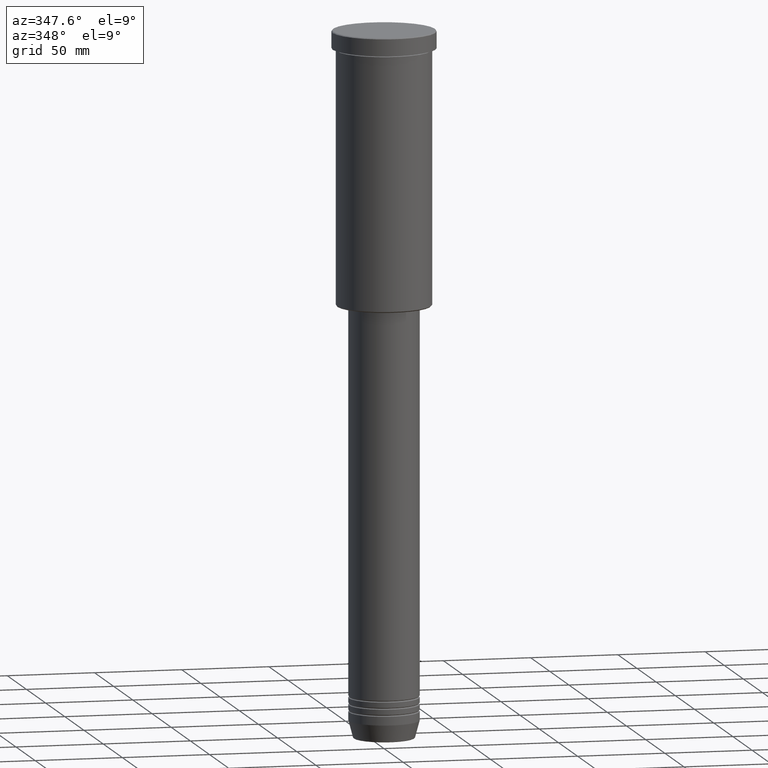
[diagram: clean part render]
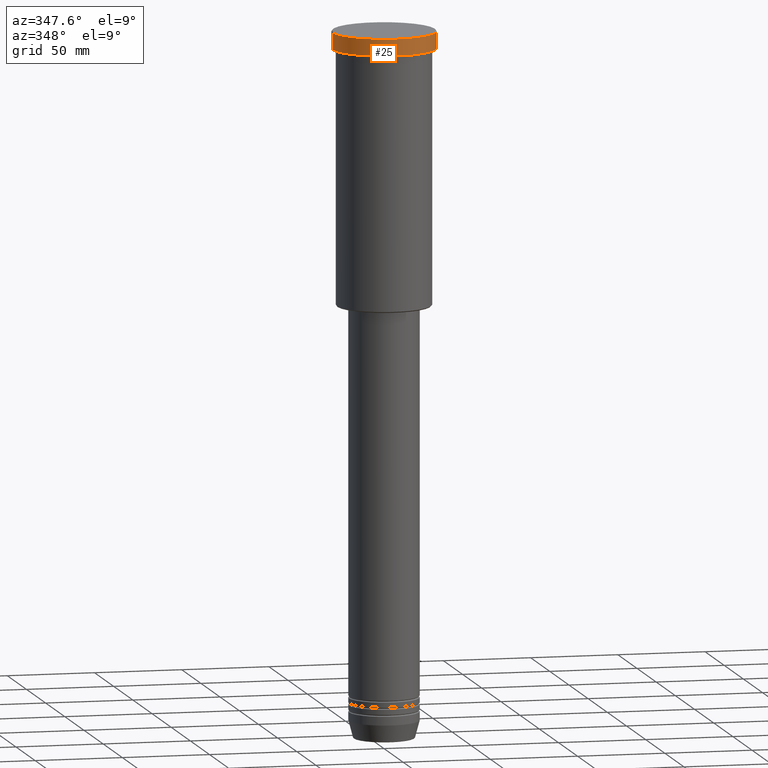
[diagram: same view with one face highlighted and labeled with its STEP entity id]
A machine part, auxiliary view. The second image highlights one B-rep face of the part: STEP entity #25.
In plain terms, the highlighted cylindrical surface (partial cylindrical patch) has radius 29.5 mm, axis along (-0, -0, 1).
Its self-contained STEP definition (entity closure, byte-faithful):
#9 = VERTEX_POINT ( 'NONE', #488 ) ;
#22 = DIRECTION ( 'NONE',  ( 1.000000000000000000, 0.000000000000000000, 0.000000000000000000 ) ) ;
#25 = ADVANCED_FACE ( 'NONE', ( #658 ), #912, .T. ) ;
#45 = CARTESIAN_POINT ( 'NONE',  ( -29.50000000000000000, 3.612708057484691604E-15, -0.5000000000000559552 ) ) ;
#110 = ORIENTED_EDGE ( 'NONE', *, *, #644, .T. ) ;
#111 = CARTESIAN_POINT ( 'NONE',  ( 0.000000000000000000, 0.000000000000000000, 0.000000000000000000 ) ) ;
#151 = DIRECTION ( 'NONE',  ( 1.000000000000000000, 0.000000000000000000, 0.000000000000000000 ) ) ;
#204 = DIRECTION ( 'NONE',  ( -0.000000000000000000, -0.000000000000000000, 1.000000000000000000 ) ) ;
#239 = DIRECTION ( 'NONE',  ( 0.000000000000000000, 0.000000000000000000, -1.000000000000000000 ) ) ;
#257 = EDGE_LOOP ( 'NONE', ( #1065, #892, #110, #553 ) ) ;
#260 = CARTESIAN_POINT ( 'NONE',  ( 29.50000000000000000, 0.000000000000000000, -9.999999999999992895 ) ) ;
#266 = DIRECTION ( 'NONE',  ( -0.000000000000000000, -0.000000000000000000, 1.000000000000000000 ) ) ;
#286 = AXIS2_PLACEMENT_3D ( 'NONE', #991, #239, #151 ) ;
#315 = CARTESIAN_POINT ( 'NONE',  ( 29.50000000000000000, 0.000000000000000000, 0.000000000000000000 ) ) ;
#350 = CIRCLE ( 'NONE', #286, 29.50000000000000000 ) ;
#352 = VERTEX_POINT ( 'NONE', #260 ) ;
#358 = CARTESIAN_POINT ( 'NONE',  ( 0.000000000000000000, 0.000000000000000000, -9.999999999999992895 ) ) ;
#488 = CARTESIAN_POINT ( 'NONE',  ( -29.50000000000000000, 3.612708057484691604E-15, -9.999999999999992895 ) ) ;
#498 = AXIS2_PLACEMENT_3D ( 'NONE', #111, #824, #22 ) ;
#553 = ORIENTED_EDGE ( 'NONE', *, *, #998, .T. ) ;
#644 = EDGE_CURVE ( 'NONE', #352, #950, #749, .T. ) ;
#658 = FACE_OUTER_BOUND ( 'NONE', #257, .T. ) ;
#672 = EDGE_CURVE ( 'NONE', #9, #1035, #1124, .T. ) ;
#676 = VECTOR ( 'NONE', #204, 1000.000000000000000 ) ;
#708 = DIRECTION ( 'NONE',  ( 1.000000000000000000, 0.000000000000000000, 0.000000000000000000 ) ) ;
#743 = CARTESIAN_POINT ( 'NONE',  ( -29.50000000000000000, 3.612708057484691604E-15, 0.000000000000000000 ) ) ;
#749 = LINE ( 'NONE', #315, #788 ) ;
#788 = VECTOR ( 'NONE', #1026, 1000.000000000000000 ) ;
#824 = DIRECTION ( 'NONE',  ( -0.000000000000000000, -0.000000000000000000, 1.000000000000000000 ) ) ;
#892 = ORIENTED_EDGE ( 'NONE', *, *, #954, .T. ) ;
#912 = CYLINDRICAL_SURFACE ( 'NONE', #498, 29.50000000000000000 ) ;
#950 = VERTEX_POINT ( 'NONE', #1103 ) ;
#954 = EDGE_CURVE ( 'NONE', #9, #352, #1181, .T. ) ;
#991 = CARTESIAN_POINT ( 'NONE',  ( 0.000000000000000000, 0.000000000000000000, -0.5000000000000559552 ) ) ;
#998 = EDGE_CURVE ( 'NONE', #950, #1035, #350, .T. ) ;
#1026 = DIRECTION ( 'NONE',  ( -0.000000000000000000, -0.000000000000000000, 1.000000000000000000 ) ) ;
#1035 = VERTEX_POINT ( 'NONE', #45 ) ;
#1041 = AXIS2_PLACEMENT_3D ( 'NONE', #358, #266, #708 ) ;
#1065 = ORIENTED_EDGE ( 'NONE', *, *, #672, .F. ) ;
#1103 = CARTESIAN_POINT ( 'NONE',  ( 29.50000000000000000, 0.000000000000000000, -0.5000000000000559552 ) ) ;
#1124 = LINE ( 'NONE', #743, #676 ) ;
#1181 = CIRCLE ( 'NONE', #1041, 29.50000000000000000 ) ;